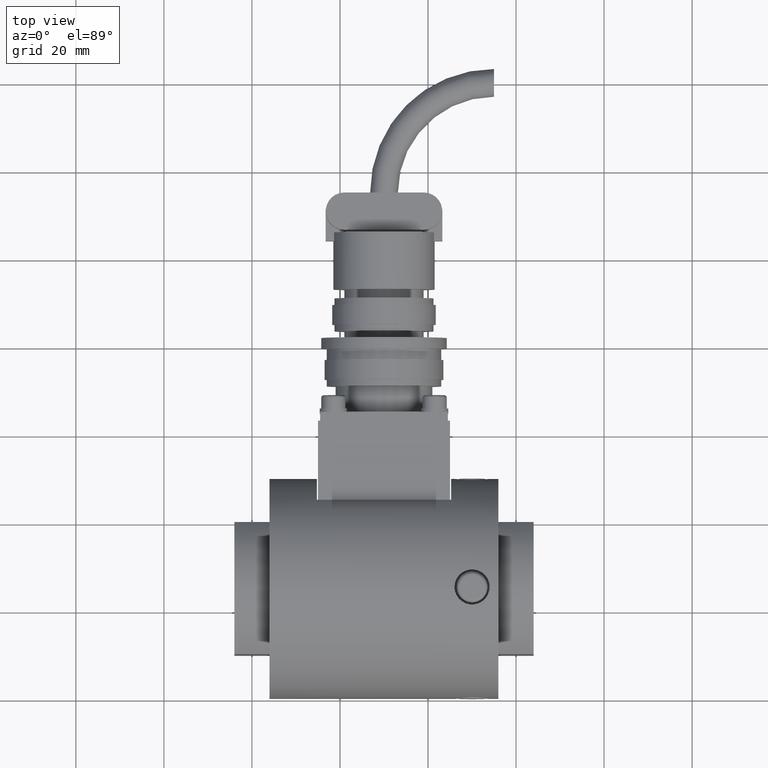
[diagram: clean part render]
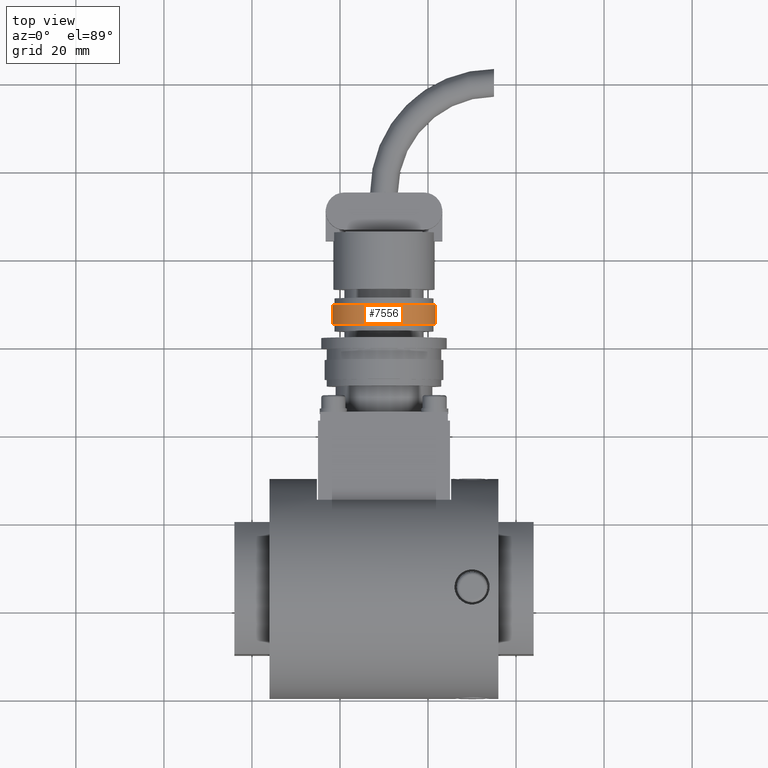
[diagram: same view with one face highlighted and labeled with its STEP entity id]
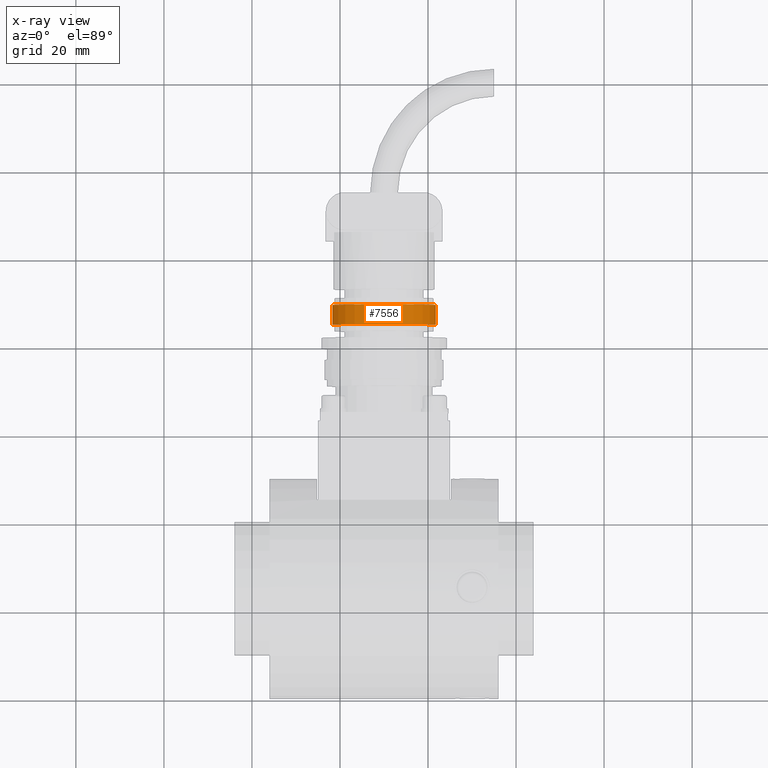
[diagram: x-ray of the same camera — body ghosted, the highlighted face saturated]
A machine part, top view. The second image highlights one B-rep face of the part: STEP entity #7556.
The next image is the same camera in x-ray: the body ghosted, the highlighted face saturated — about 0% of this face is hidden behind the body in this view.
In plain terms, the highlighted cylindrical surface (partial cylindrical patch) has radius 11.75 mm, axis along (-0, -1, 0).
Its self-contained STEP definition (entity closure, byte-faithful):
#6252=CARTESIAN_POINT('',(-23.525000000000119,8.750000000000057,0.0));
#6253=VERTEX_POINT('',#6252);
#6254=CARTESIAN_POINT('',(-23.525000000000119,4.250000000000057,0.0));
#6255=VERTEX_POINT('',#6254);
#6256=CARTESIAN_POINT('',(-23.525000000000119,8.750000000000057,0.0));
#6257=DIRECTION('',(0.0,-1.0,0.0));
#6258=VECTOR('',#6257,4.500000000000000);
#6259=LINE('',#6256,#6258);
#6260=EDGE_CURVE('',#6253,#6255,#6259,.T.);
#6262=CARTESIAN_POINT('',(-0.025000000000173,8.750000000000059,-1.438912E-015));
#6263=VERTEX_POINT('',#6262);
#6271=CARTESIAN_POINT('',(-0.025000000000172,4.250000000000059,-1.438912E-015));
#6272=VERTEX_POINT('',#6271);
#6273=CARTESIAN_POINT('',(-0.025000000000173,8.750000000000059,-1.438912E-015));
#6274=DIRECTION('',(0.0,-1.0,0.0));
#6275=VECTOR('',#6274,4.500000000000000);
#6276=LINE('',#6273,#6275);
#6277=EDGE_CURVE('',#6263,#6272,#6276,.T.);
#7524=CARTESIAN_POINT('',(-11.775000000000146,4.250000000000057,0.0));
#7525=DIRECTION('',(0.0,1.0,0.0));
#7526=DIRECTION('',(-1.0,0.0,0.0));
#7527=AXIS2_PLACEMENT_3D('',#7524,#7525,#7526);
#7528=CIRCLE('',#7527,11.749999999999973);
#7529=EDGE_CURVE('',#6255,#6272,#7528,.T.);
#7539=CARTESIAN_POINT('',(-11.775000000000146,6.500000000000057,0.0));
#7540=DIRECTION('',(-1.224606E-016,1.0,0.0));
#7541=DIRECTION('',(-1.0,0.0,0.0));
#7542=AXIS2_PLACEMENT_3D('',#7539,#7540,#7541);
#7543=CYLINDRICAL_SURFACE('',#7542,11.749999999999973);
#7544=ORIENTED_EDGE('',*,*,#6260,.T.);
#7545=ORIENTED_EDGE('',*,*,#7529,.T.);
#7546=ORIENTED_EDGE('',*,*,#6277,.F.);
#7547=CARTESIAN_POINT('',(-11.775000000000148,8.750000000000057,0.0));
#7548=DIRECTION('',(0.0,1.0,0.0));
#7549=DIRECTION('',(-1.0,0.0,0.0));
#7550=AXIS2_PLACEMENT_3D('',#7547,#7548,#7549);
#7551=CIRCLE('',#7550,11.749999999999972);
#7552=EDGE_CURVE('',#6253,#6263,#7551,.T.);
#7553=ORIENTED_EDGE('',*,*,#7552,.F.);
#7554=EDGE_LOOP('',(#7544,#7545,#7546,#7553));
#7555=FACE_OUTER_BOUND('',#7554,.T.);
#7556=ADVANCED_FACE('',(#7555),#7543,.T.);